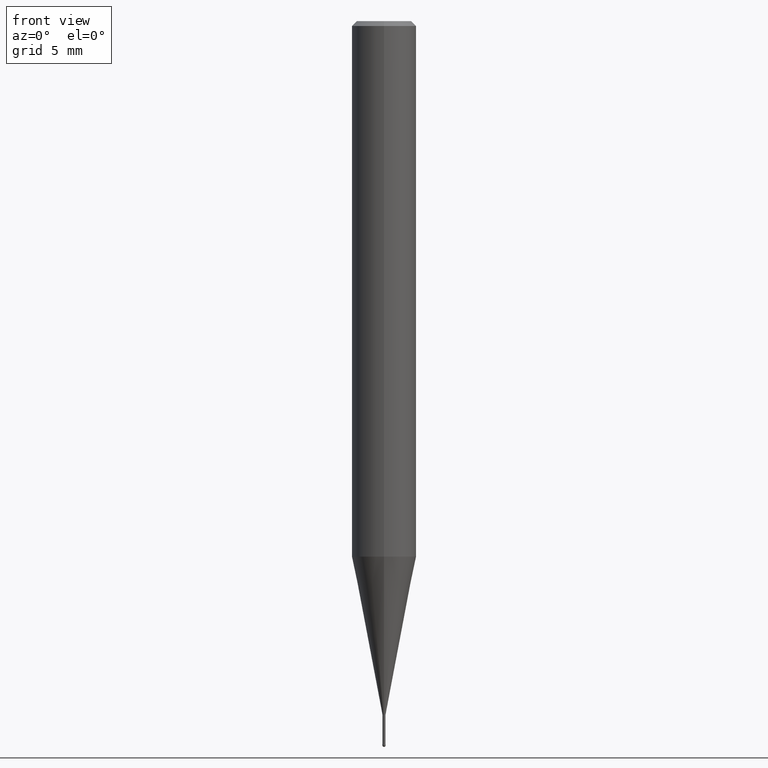
[diagram: clean part render]
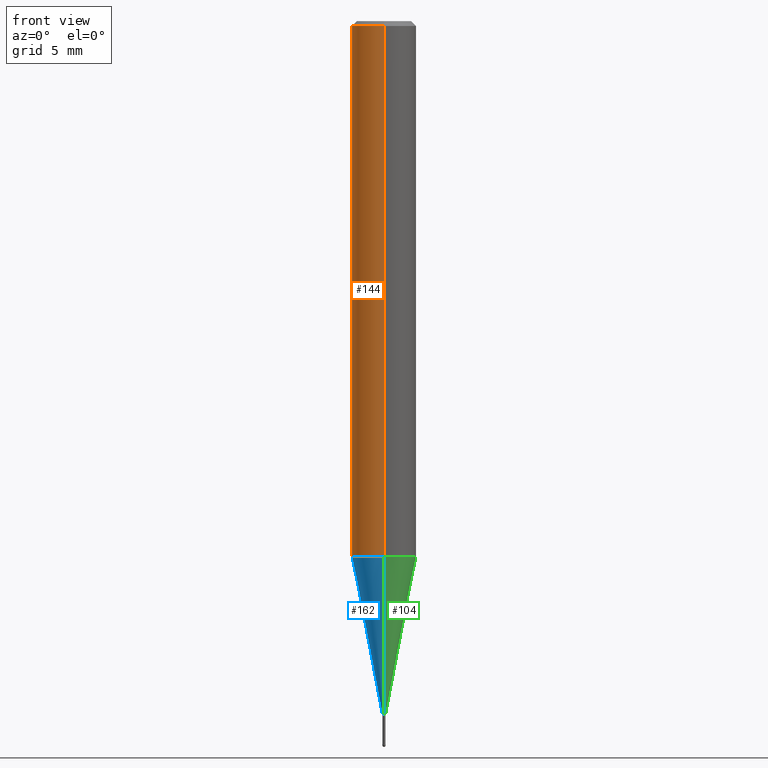
[diagram: same view with three faces highlighted in distinct colors, each labeled with its STEP entity id]
A machine part, front view with three faces highlighted in distinct colors.
Their STEP definitions:

[orange] entity #144 — the highlighted cylindrical surface (edge-blend (fillet) strip) has radius 2 mm, axis along (-0, -0, 1).
#96=EDGE_CURVE('',#184,#170,#237,.T.);
#112=VERTEX_POINT('',#258);
#114=EDGE_CURVE('',#112,#184,#260,.T.);
#128=EDGE_CURVE('',#170,#150,#274,.T.);
#144=ADVANCED_FACE('',(#291),#292,.T.);
#150=VERTEX_POINT('',#300);
#170=VERTEX_POINT('',#323);
#184=VERTEX_POINT('',#338);
#214=EDGE_CURVE('',#112,#150,#372,.T.);
#237=CIRCLE('',#389,2.0);
#258=CARTESIAN_POINT('',(2.44921270764475E-016,-2.0,-33.2));
#260=LINE('',#415,#416);
#274=LINE('',#435,#436);
#291=FACE_OUTER_BOUND('',#458,.T.);
#292=CYLINDRICAL_SURFACE('',#459,2.0);
#300=CARTESIAN_POINT('',(0.0,2.0,-33.2));
#323=CARTESIAN_POINT('',(0.0,2.0,-0.299999999999997));
#338=CARTESIAN_POINT('',(2.44921270764475E-016,-2.0,-0.299999999999997));
#372=CIRCLE('',#557,2.0);
#389=AXIS2_PLACEMENT_3D('',#562,#563,#564);
#415=CARTESIAN_POINT('',(2.44921270764475E-016,-2.0,-16.75));
#416=VECTOR('',#607,1.0);
#435=CARTESIAN_POINT('',(-2.44921270764475E-016,2.0,-16.75));
#436=VECTOR('',#614,1.0);
#458=EDGE_LOOP('',(#634,#635,#636,#637));
#459=AXIS2_PLACEMENT_3D('',#638,#639,#640);
#557=AXIS2_PLACEMENT_3D('',#737,#738,#739);
#562=CARTESIAN_POINT('',(0.0,0.0,-0.299999999999997));
#563=DIRECTION('',(0.0,0.0,-1.0));
#564=DIRECTION('',(0.0,1.0,0.0));
#607=DIRECTION('',(-0.0,-0.0,1.0));
#614=DIRECTION('',(0.0,0.0,-1.0));
#634=ORIENTED_EDGE('',*,*,#128,.T.);
#635=ORIENTED_EDGE('',*,*,#214,.F.);
#636=ORIENTED_EDGE('',*,*,#114,.T.);
#637=ORIENTED_EDGE('',*,*,#96,.T.);
#638=CARTESIAN_POINT('',(0.0,0.0,-16.75));
#639=DIRECTION('',(-0.0,-0.0,1.0));
#640=DIRECTION('',(0.0,1.0,0.0));
#737=CARTESIAN_POINT('',(0.0,0.0,-33.2));
#738=DIRECTION('',(0.0,0.0,-1.0));
#739=DIRECTION('',(0.0,1.0,0.0));

[blue] entity #162 — the highlighted conical surface has half-angle 11 deg.
#136=EDGE_CURVE('',#168,#206,#282,.T.);
#140=EDGE_CURVE('',#178,#190,#287,.T.);
#160=EDGE_CURVE('',#190,#206,#312,.T.);
#162=ADVANCED_FACE('',(#314),#315,.T.);
#168=VERTEX_POINT('',#321);
#178=VERTEX_POINT('',#332);
#190=VERTEX_POINT('',#345);
#192=EDGE_CURVE('',#168,#178,#347,.T.);
#206=VERTEX_POINT('',#363);
#282=CIRCLE('',#448,0.09495);
#287=CIRCLE('',#454,1.99995);
#312=LINE('',#484,#485);
#314=FACE_OUTER_BOUND('',#487,.T.);
#315=CONICAL_SURFACE('',#488,1.04745,0.191993392580482);
#321=CARTESIAN_POINT('',(1.16276373295435E-017,-0.09495,-43.0));
#332=CARTESIAN_POINT('',(2.44915147732706E-016,-1.99995,-33.2));
#345=CARTESIAN_POINT('',(0.0,1.99995,-33.2));
#347=LINE('',#529,#530);
#363=CARTESIAN_POINT('',(0.0,0.09495,-43.0));
#448=AXIS2_PLACEMENT_3D('',#619,#620,#621);
#454=AXIS2_PLACEMENT_3D('',#630,#631,#632);
#484=CARTESIAN_POINT('',(-1.28271392531125E-016,1.04745,-38.1));
#485=VECTOR('',#670,1.0);
#487=EDGE_LOOP('',(#672,#673,#674,#675));
#488=AXIS2_PLACEMENT_3D('',#676,#677,#678);
#529=CARTESIAN_POINT('',(1.28271392531125E-016,-1.04745,-38.1));
#530=VECTOR('',#709,1.0);
#619=CARTESIAN_POINT('',(0.0,0.0,-43.0));
#620=DIRECTION('',(0.0,0.0,-1.0));
#621=DIRECTION('',(0.0,1.0,0.0));
#630=CARTESIAN_POINT('',(0.0,0.0,-33.2));
#631=DIRECTION('',(0.0,0.0,-1.0));
#632=DIRECTION('',(0.0,1.0,0.0));
#670=DIRECTION('',(2.33674533048507E-017,-0.190816038410332,-0.981625814394358));
#672=ORIENTED_EDGE('',*,*,#160,.T.);
#673=ORIENTED_EDGE('',*,*,#136,.F.);
#674=ORIENTED_EDGE('',*,*,#192,.T.);
#675=ORIENTED_EDGE('',*,*,#140,.T.);
#676=CARTESIAN_POINT('',(0.0,0.0,-38.1));
#677=DIRECTION('',(-0.0,-0.0,1.0));
#678=DIRECTION('',(0.0,1.0,0.0));
#709=DIRECTION('',(2.33674533048507E-017,-0.190816038410332,0.981625814394358));

[green] entity #104 — the highlighted conical surface has half-angle 11 deg.
#104=ADVANCED_FACE('',(#248),#249,.T.);
#160=EDGE_CURVE('',#190,#206,#312,.T.);
#168=VERTEX_POINT('',#321);
#178=VERTEX_POINT('',#332);
#180=EDGE_CURVE('',#190,#178,#334,.T.);
#182=EDGE_CURVE('',#206,#168,#336,.T.);
#190=VERTEX_POINT('',#345);
#192=EDGE_CURVE('',#168,#178,#347,.T.);
#206=VERTEX_POINT('',#363);
#248=FACE_OUTER_BOUND('',#400,.T.);
#249=CONICAL_SURFACE('',#401,1.04745,0.191993392580482);
#312=LINE('',#484,#485);
#321=CARTESIAN_POINT('',(1.16276373295435E-017,-0.09495,-43.0));
#332=CARTESIAN_POINT('',(2.44915147732706E-016,-1.99995,-33.2));
#334=CIRCLE('',#513,1.99995);
#336=CIRCLE('',#516,0.09495);
#345=CARTESIAN_POINT('',(0.0,1.99995,-33.2));
#347=LINE('',#529,#530);
#363=CARTESIAN_POINT('',(0.0,0.09495,-43.0));
#400=EDGE_LOOP('',(#586,#587,#588,#589));
#401=AXIS2_PLACEMENT_3D('',#590,#591,#592);
#484=CARTESIAN_POINT('',(-1.28271392531125E-016,1.04745,-38.1));
#485=VECTOR('',#670,1.0);
#513=AXIS2_PLACEMENT_3D('',#692,#693,#694);
#516=AXIS2_PLACEMENT_3D('',#695,#696,#697);
#529=CARTESIAN_POINT('',(1.28271392531125E-016,-1.04745,-38.1));
#530=VECTOR('',#709,1.0);
#586=ORIENTED_EDGE('',*,*,#160,.F.);
#587=ORIENTED_EDGE('',*,*,#180,.T.);
#588=ORIENTED_EDGE('',*,*,#192,.F.);
#589=ORIENTED_EDGE('',*,*,#182,.F.);
#590=CARTESIAN_POINT('',(0.0,0.0,-38.1));
#591=DIRECTION('',(-0.0,-0.0,1.0));
#592=DIRECTION('',(0.0,1.0,0.0));
#670=DIRECTION('',(2.33674533048507E-017,-0.190816038410332,-0.981625814394358));
#692=CARTESIAN_POINT('',(0.0,0.0,-33.2));
#693=DIRECTION('',(0.0,0.0,-1.0));
#694=DIRECTION('',(0.0,1.0,0.0));
#695=CARTESIAN_POINT('',(0.0,0.0,-43.0));
#696=DIRECTION('',(0.0,0.0,-1.0));
#697=DIRECTION('',(0.0,1.0,0.0));
#709=DIRECTION('',(2.33674533048507E-017,-0.190816038410332,0.981625814394358));